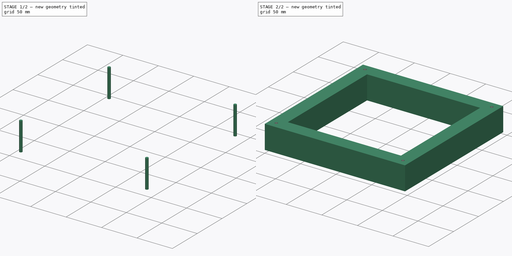
[diagram: build sequence overview — one tinted view per stage of 2, left to right]
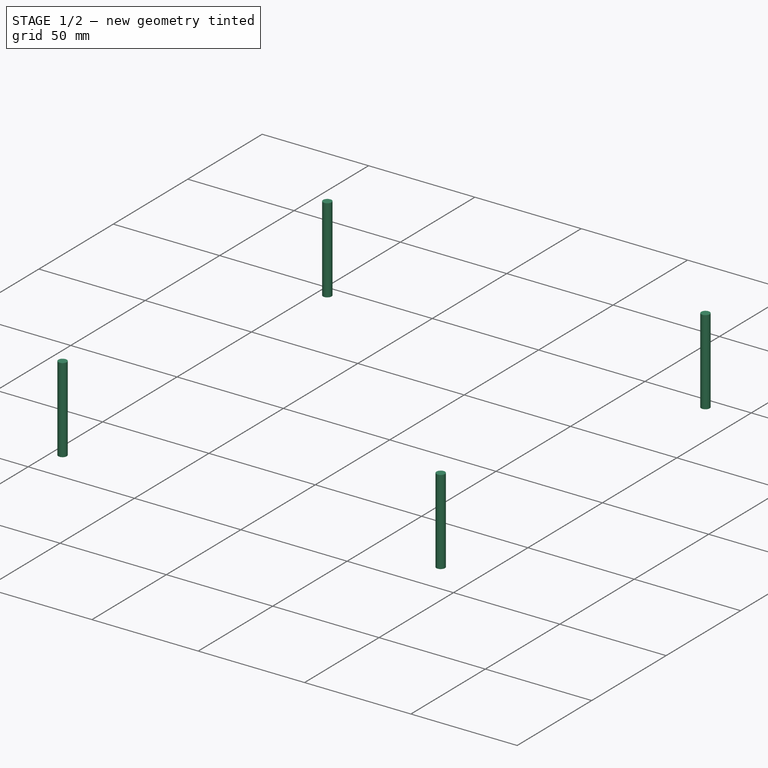
[diagram: stage 1 of 2 — iso view after this stage's code; geometry added in this stage tinted green]
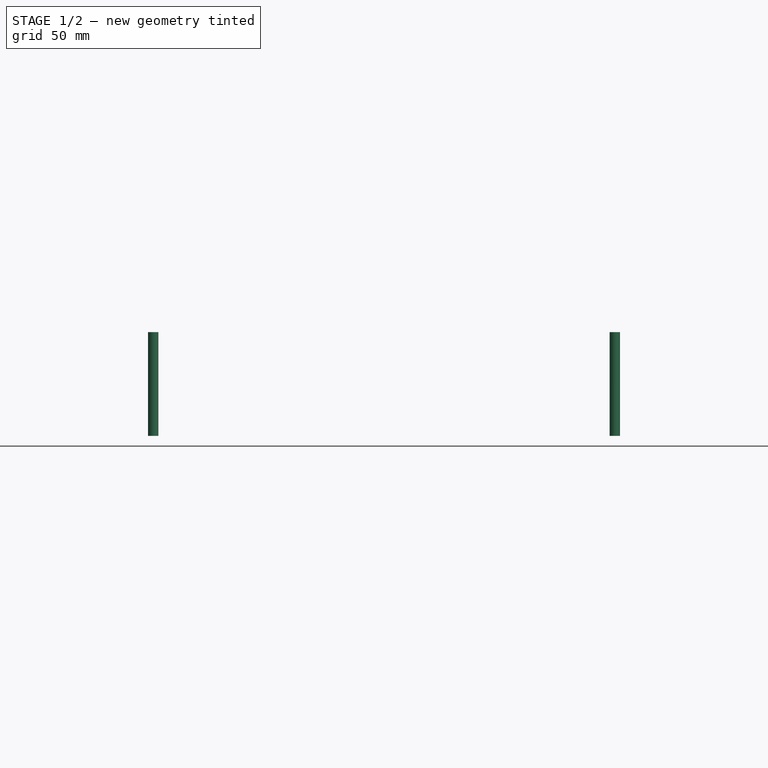
[diagram: stage 1 of 2 — front view after this stage's code; geometry added in this stage tinted green]
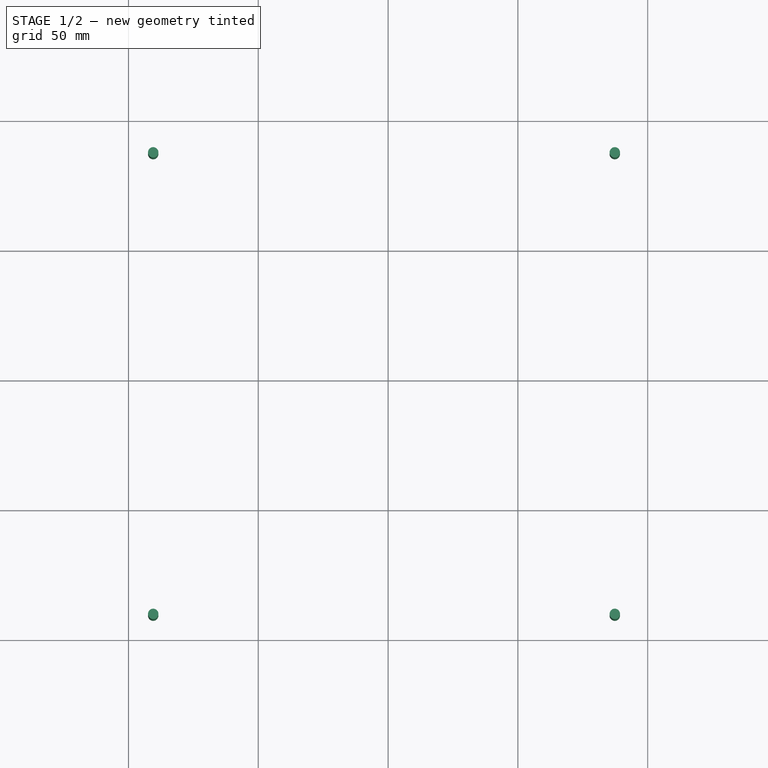
[diagram: stage 1 of 2 — top view after this stage's code; geometry added in this stage tinted green]
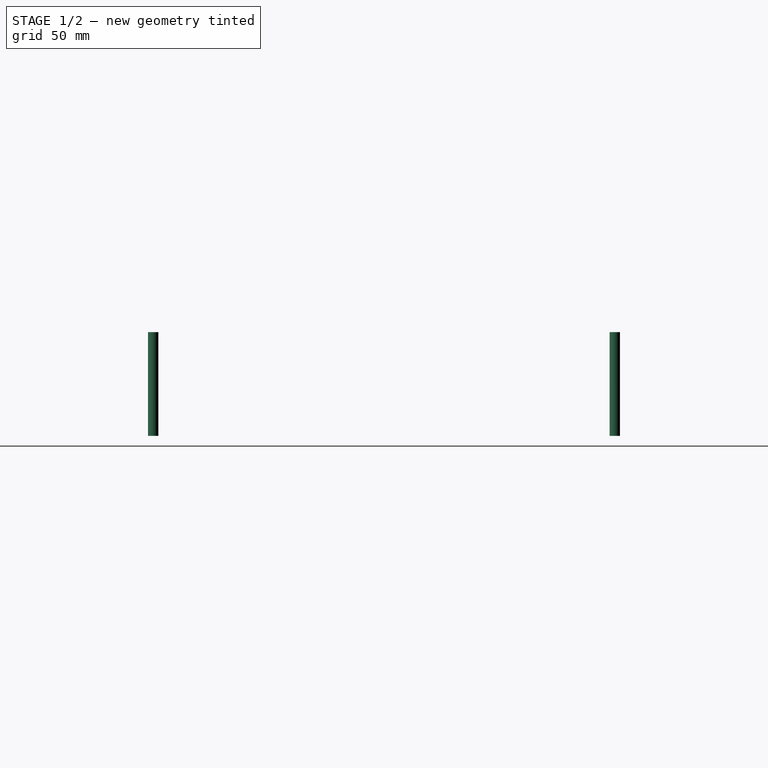
[diagram: stage 1 of 2 — right view after this stage's code; geometry added in this stage tinted green]
FCSTD DOCUMENT  (FreeCAD 0.20R29177 +426 (Git))
Label: MotorWall
License: All rights reserved
LicenseURL: http://en.wikipedia.org/wiki/All_rights_reserved
objects: Sketcher::SketchObject×2, Part::Extrusion×2, Part::Cut×1
note: 5 computed .brp shape members not serialized (recipe doc carries the construction recipe); baked Part::Feature solids carry a one-line shape summary decoded from their .brp

FEATURE [Sketcher::SketchObject] Sketch
  FullyConstrained = true
  sketch-geometry (8):
    g0: LineSegment StartX=0 StartY=0 StartZ=0 EndX=196.85 EndY=0 EndZ=0
    g1: LineSegment StartX=196.85 StartY=0 StartZ=0 EndX=196.85 EndY=196.85 EndZ=0
    g2: LineSegment StartX=196.85 StartY=196.85 StartZ=0 EndX=0 EndY=196.85 EndZ=0
    g3: LineSegment StartX=0 StartY=196.85 StartZ=0 EndX=0 EndY=0 EndZ=0
    g4: LineSegment StartX=19.05 StartY=19.05 StartZ=0 EndX=177.8 EndY=19.05 EndZ=0
    g5: LineSegment StartX=177.8 StartY=19.05 StartZ=0 EndX=177.8 EndY=177.8 EndZ=0
    g6: LineSegment StartX=177.8 StartY=177.8 StartZ=0 EndX=19.05 EndY=177.8 EndZ=0
    g7: LineSegment StartX=19.05 StartY=177.8 StartZ=0 EndX=19.05 EndY=19.05 EndZ=0
  constraints (23):
    c: Coincident(g0,g1)
    c: Coincident(g1,g2)
    c: Coincident(g2,g3)
    c: Coincident(g3,g0)
    c: Horizontal(g0)
    c: Horizontal(g2)
    c: Vertical(g1)
    c: Vertical(g3)
    c: Coincident(g0,g-1)
    c: Equal(g3,g2)
    c: Distance(g3) = 196.85
    c: Coincident(g4,g5)
    c: Coincident(g5,g6)
    c: Coincident(g6,g7)
    c: Coincident(g7,g4)
    c: Horizontal(g4)
    c: Horizontal(g6)
    c: Vertical(g5)
    c: Vertical(g7)
    c: DistanceX(g0,g4) = 19.05
    c: DistanceY(g0,g4) = 19.05
    c: DistanceX(g5,g1) = 19.05
    c: DistanceY(g5,g1) = 19.05
FEATURE [Part::Extrusion] Extrude
  Base = -> Sketch
  Dir = (0,0,1)
  DirMode = 2
  FaceMakerClass = Part::FaceMakerBullseye
  LengthFwd = 33.02
  LengthRev = 0
  Solid = true
  Symmetric = false
FEATURE [Sketcher::SketchObject] Sketch001
  ExternalGeometry = -> [Extrude]
  FullyConstrained = true
  MapMode = 5
  Placement = pos=(0,0,33.02) rot=(0,0,1;0rad)
  Support = -> [Extrude]
  sketch-geometry (12):
    g0: Circle CenterX=9.525 CenterY=187.325 CenterZ=0 NormalX=0 NormalY=0 NormalZ=1 AngleXU=0 Radius=2
    g1: LineSegment StartX=0 StartY=196.85 StartZ=0 EndX=9.525 EndY=187.325 EndZ=0
    g2: LineSegment StartX=9.525 StartY=187.325 StartZ=0 EndX=19.05 EndY=177.8 EndZ=0
    g3: Circle CenterX=187.325 CenterY=187.325 CenterZ=0 NormalX=0 NormalY=0 NormalZ=1 AngleXU=0 Radius=2
    g4: Circle CenterX=187.325 CenterY=9.525 CenterZ=0 NormalX=0 NormalY=0 NormalZ=1 AngleXU=0 Radius=2
    g5: Circle CenterX=9.525 CenterY=9.525 CenterZ=0 NormalX=0 NormalY=0 NormalZ=1 AngleXU=0 Radius=2
    g6: LineSegment StartX=177.8 StartY=177.8 StartZ=0 EndX=187.325 EndY=187.325 EndZ=0
    g7: LineSegment StartX=187.325 StartY=187.325 StartZ=0 EndX=196.85 EndY=196.85 EndZ=0
    g8: LineSegment StartX=177.8 StartY=19.05 StartZ=0 EndX=187.325 EndY=9.525 EndZ=0
    g9: LineSegment StartX=187.325 StartY=9.525 StartZ=0 EndX=196.85 EndY=0 EndZ=0
    g10: LineSegment StartX=0 StartY=0 StartZ=0 EndX=9.525 EndY=9.525 EndZ=0
    g11: LineSegment StartX=9.525 StartY=9.525 StartZ=0 EndX=19.05 EndY=19.05 EndZ=0
  constraints (28):
    c: Coincident(g1,g-4)
    c: Coincident(g1,g0)
    c: Coincident(g2,g0)
    c: Coincident(g2,g-3)
    c: Equal(g2,g1)
    c: Parallel(g1,g2)
    c: Radius(g0) = 2
    c: Coincident(g6,g-3)
    c: Coincident(g6,g3)
    c: Coincident(g7,g3)
    c: Coincident(g7,g-4)
    c: Coincident(g8,g-5)
    c: Coincident(g8,g4)
    c: Coincident(g9,g4)
    c: Coincident(g9,g-6)
    c: Coincident(g10,g-6)
    c: Coincident(g10,g5)
    c: Coincident(g11,g5)
    c: Coincident(g11,g-5)
    c: Parallel(g6,g7)
    c: Equal(g7,g6)
    c: Equal(g8,g9)
    c: Parallel(g9,g8)
    c: Equal(g10,g11)
    c: Parallel(g11,g10)
    c: Radius(g3) = 2
    c: Radius(g4) = 2
    c: Radius(g5) = 2
FEATURE [Part::Extrusion] Extrude001
  Base = -> Sketch001
  Dir = (0,0,1)
  DirMode = 2
  FaceMakerClass = Part::FaceMakerBullseye
  LengthFwd = 0
  LengthRev = 40
  Solid = true
  Symmetric = false
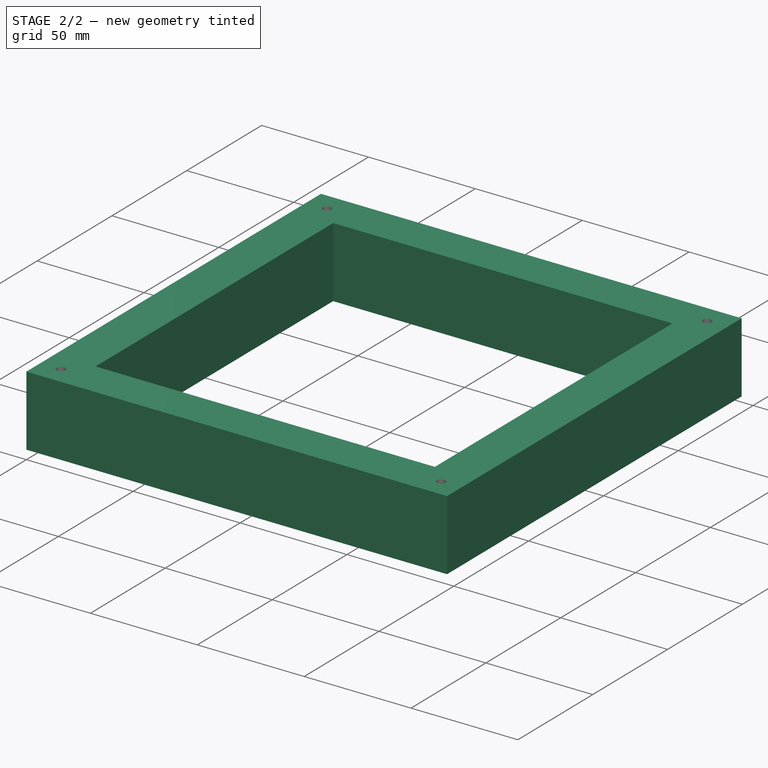
[diagram: stage 2 of 2 — iso view after this stage's code; geometry added in this stage tinted green]
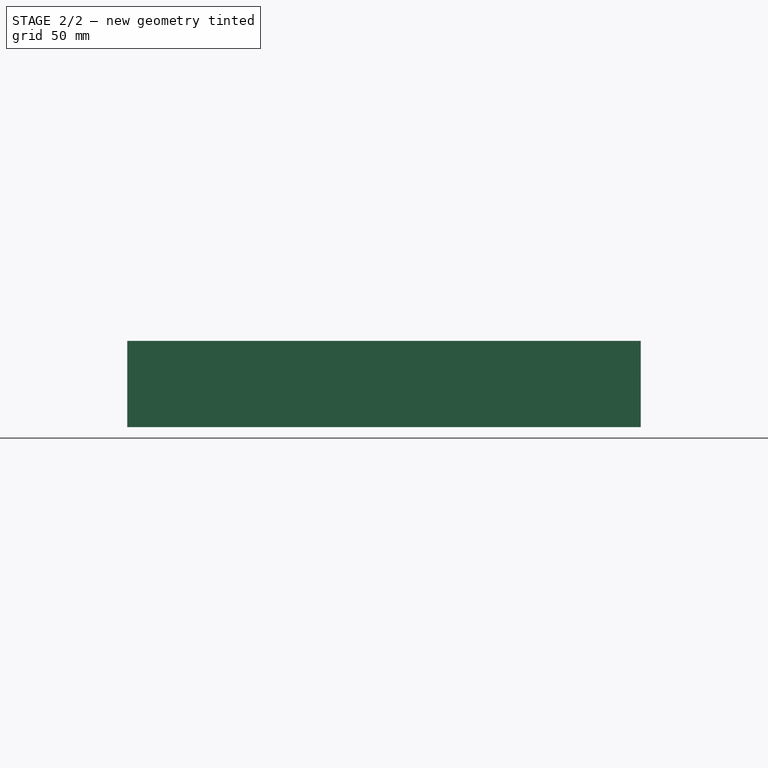
[diagram: stage 2 of 2 — front view after this stage's code; geometry added in this stage tinted green]
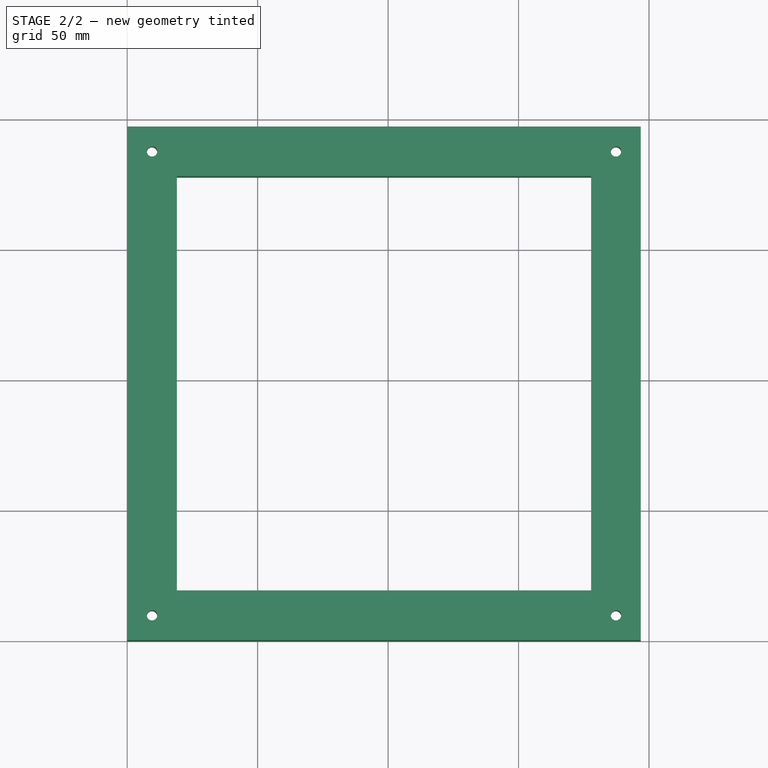
[diagram: stage 2 of 2 — top view after this stage's code; geometry added in this stage tinted green]
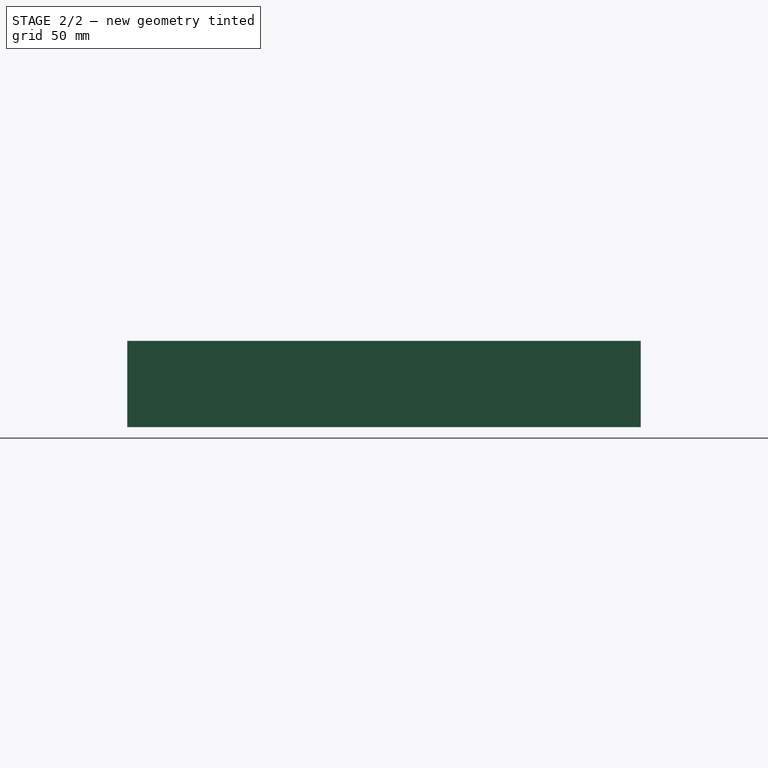
[diagram: stage 2 of 2 — right view after this stage's code; geometry added in this stage tinted green]
FEATURE [Part::Cut] Cut  label="Wall"
  Base = -> Extrude
  Tool = -> Extrude001
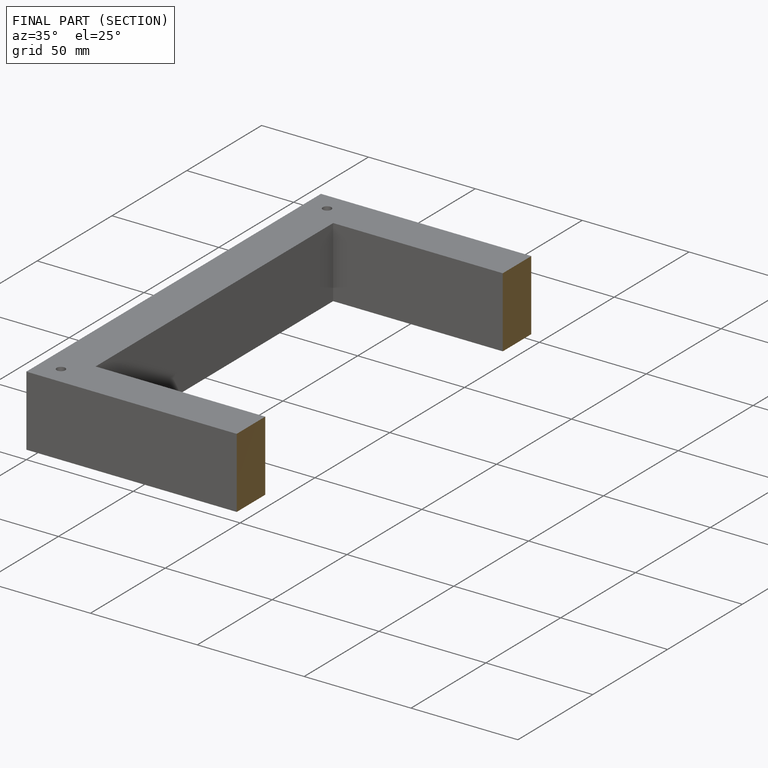
[diagram: finished part — half-section view (interior)]
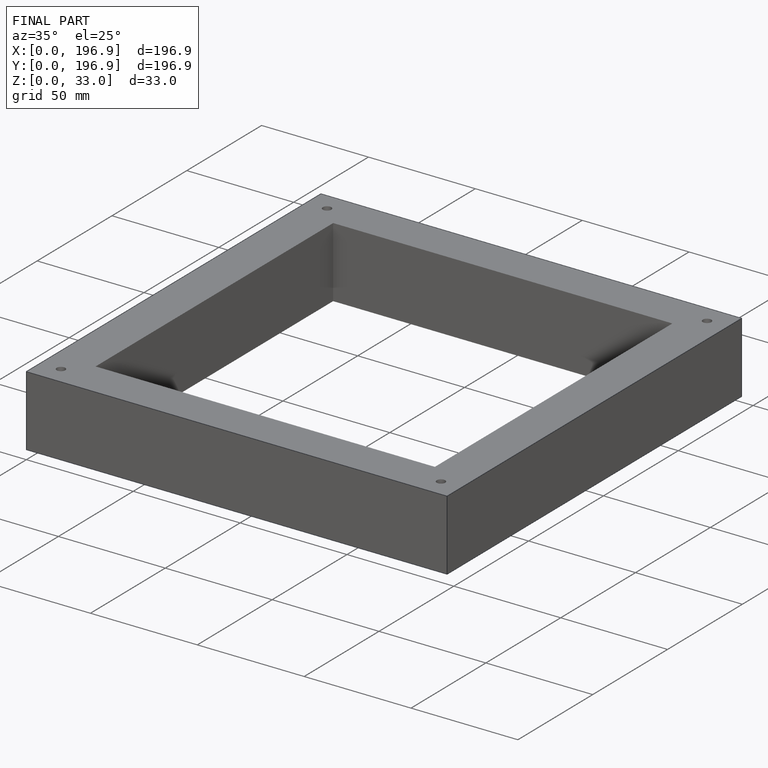
[diagram: finished part — iso view with bounding-box wireframe]
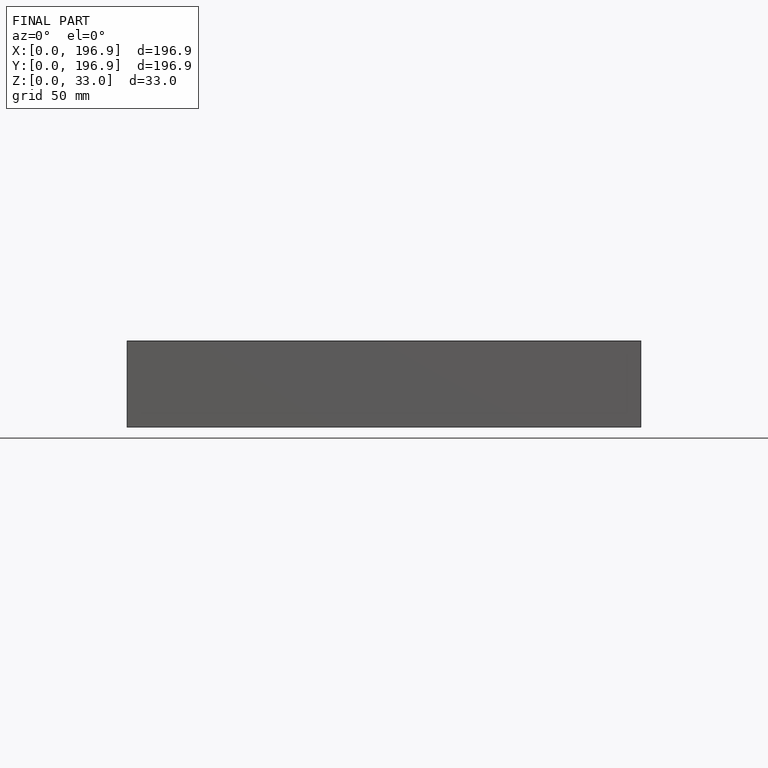
[diagram: finished part — front view with bounding-box wireframe]
